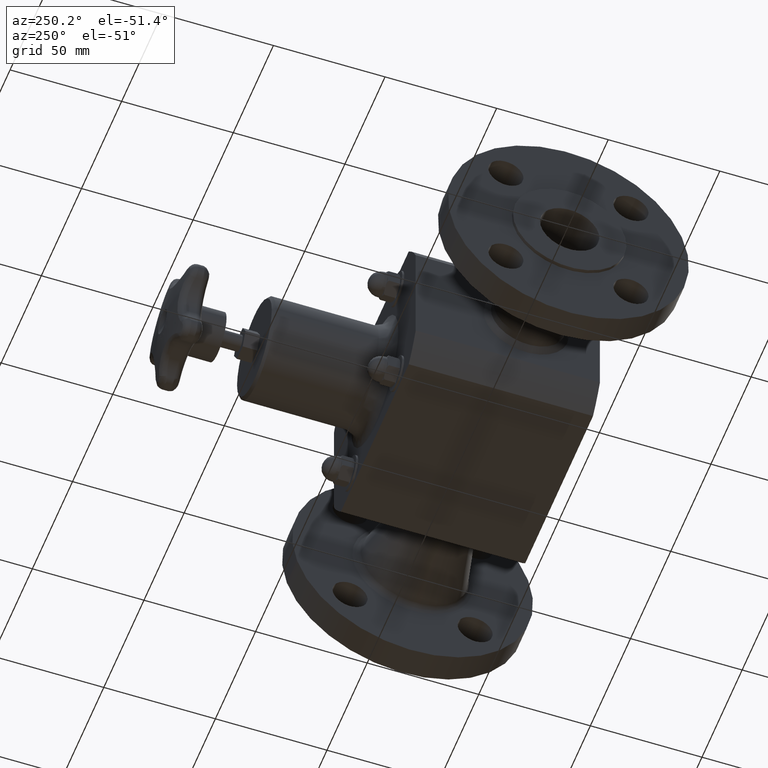
[diagram: clean part render]
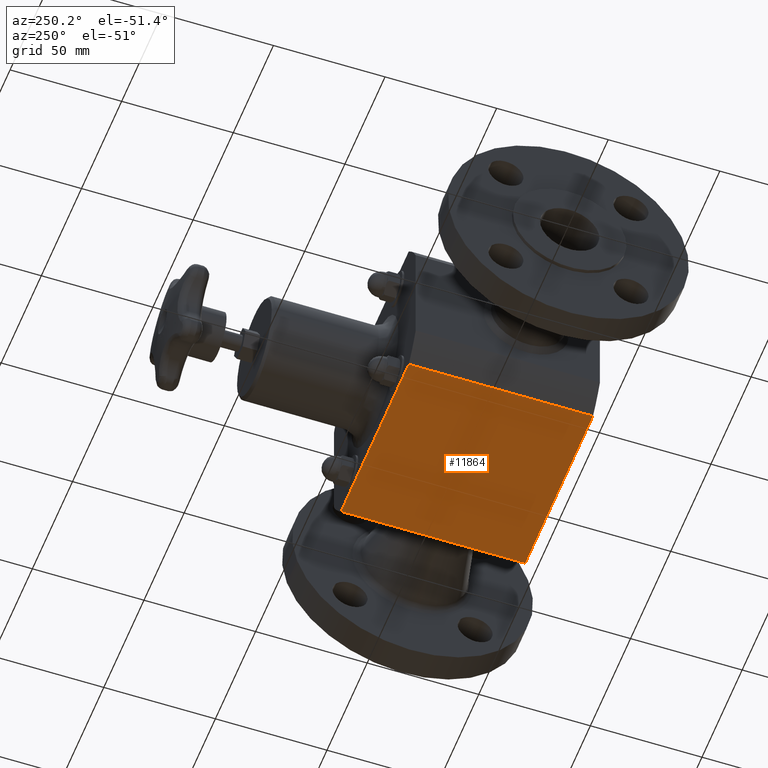
[diagram: same view with one face highlighted and labeled with its STEP entity id]
A machine part, auxiliary view. The second image highlights one B-rep face of the part: STEP entity #11864.
In plain terms, the highlighted planar face has unit normal (0, 0, -1).
Its self-contained STEP definition (entity closure, byte-faithful):
#10367=CARTESIAN_POINT('',(1.660242828624773,2.500000000000044,-1.500000000000000));
#10368=VERTEX_POINT('',#10367);
#10376=CARTESIAN_POINT('',(1.660242828624772,3.250000000000043,-1.500000000000000));
#10377=VERTEX_POINT('',#10376);
#10378=CARTESIAN_POINT('',(1.660242828624772,3.250000000000043,-1.500000000000000));
#10379=DIRECTION('',(0.0,-1.0,0.0));
#10380=VECTOR('',#10379,0.750000000000000);
#10381=LINE('',#10378,#10380);
#10382=EDGE_CURVE('',#10377,#10368,#10381,.T.);
#10493=CARTESIAN_POINT('',(-1.660242828624781,3.250000000000040,-1.500000000000001));
#10494=VERTEX_POINT('',#10493);
#10502=CARTESIAN_POINT('',(-1.660242828624780,2.500000000000040,-1.500000000000001));
#10503=VERTEX_POINT('',#10502);
#10504=CARTESIAN_POINT('',(-1.660242828624780,2.500000000000040,-1.500000000000001));
#10505=DIRECTION('',(0.0,1.0,0.0));
#10506=VECTOR('',#10505,0.750000000000000);
#10507=LINE('',#10504,#10506);
#10508=EDGE_CURVE('',#10503,#10494,#10507,.T.);
#10659=CARTESIAN_POINT('',(-1.660916614403024,2.500000000000000,-1.500000000000000));
#10660=VERTEX_POINT('',#10659);
#10661=CARTESIAN_POINT('',(-1.660916614403023,2.500000000000000,-1.500000000000000));
#10662=DIRECTION('',(1.0,0.0,0.0));
#10663=VECTOR('',#10662,0.000673785778243);
#10664=LINE('',#10661,#10663);
#10665=EDGE_CURVE('',#10660,#10503,#10664,.T.);
#10731=CARTESIAN_POINT('',(1.660916614403023,2.500000000000000,-1.500000000000000));
#10732=VERTEX_POINT('',#10731);
#10740=CARTESIAN_POINT('',(1.660242828624773,2.500000000000000,-1.500000000000000));
#10741=DIRECTION('',(1.0,0.0,0.0));
#10742=VECTOR('',#10741,0.000673785778250);
#10743=LINE('',#10740,#10742);
#10744=EDGE_CURVE('',#10368,#10732,#10743,.T.);
#11813=CARTESIAN_POINT('',(-1.660916614403023,-3.816774E-016,-1.500000000000000));
#11814=VERTEX_POINT('',#11813);
#11815=CARTESIAN_POINT('',(-1.660916614403023,-3.816774E-016,-1.500000000000000));
#11816=DIRECTION('',(0.0,1.0,0.0));
#11817=VECTOR('',#11816,2.500000000000000);
#11818=LINE('',#11815,#11817);
#11819=EDGE_CURVE('',#11814,#10660,#11818,.T.);
#11832=CARTESIAN_POINT('',(-1.660916614403023,-3.816774E-016,-1.500000000000000));
#11833=DIRECTION('',(0.0,0.0,-1.0));
#11834=DIRECTION('',(-1.0,0.0,0.0));
#11835=AXIS2_PLACEMENT_3D('',#11832,#11833,#11834);
#11836=PLANE('',#11835);
#11837=ORIENTED_EDGE('',*,*,#10665,.T.);
#11838=ORIENTED_EDGE('',*,*,#10508,.T.);
#11839=CARTESIAN_POINT('',(-1.660242828624780,3.250000000000040,-1.500000000000001));
#11840=DIRECTION('',(1.0,0.0,0.0));
#11841=VECTOR('',#11840,3.320485657249553);
#11842=LINE('',#11839,#11841);
#11843=EDGE_CURVE('',#10494,#10377,#11842,.T.);
#11844=ORIENTED_EDGE('',*,*,#11843,.T.);
#11845=ORIENTED_EDGE('',*,*,#10382,.T.);
#11846=ORIENTED_EDGE('',*,*,#10744,.T.);
#11847=CARTESIAN_POINT('',(1.660916614403023,3.559178E-016,-1.500000000000000));
#11848=VERTEX_POINT('',#11847);
#11849=CARTESIAN_POINT('',(1.660916614403023,3.559178E-016,-1.500000000000000));
#11850=DIRECTION('',(0.0,1.0,0.0));
#11851=VECTOR('',#11850,2.500000000000000);
#11852=LINE('',#11849,#11851);
#11853=EDGE_CURVE('',#11848,#10732,#11852,.T.);
#11854=ORIENTED_EDGE('',*,*,#11853,.F.);
#11855=CARTESIAN_POINT('',(-1.660916614403023,-3.816774E-016,-1.500000000000000));
#11856=DIRECTION('',(1.0,0.0,0.0));
#11857=VECTOR('',#11856,3.321833228806046);
#11858=LINE('',#11855,#11857);
#11859=EDGE_CURVE('',#11814,#11848,#11858,.T.);
#11860=ORIENTED_EDGE('',*,*,#11859,.F.);
#11861=ORIENTED_EDGE('',*,*,#11819,.T.);
#11862=EDGE_LOOP('',(#11837,#11838,#11844,#11845,#11846,#11854,#11860,#11861));
#11863=FACE_OUTER_BOUND('',#11862,.T.);
#11864=ADVANCED_FACE('',(#11863),#11836,.T.);